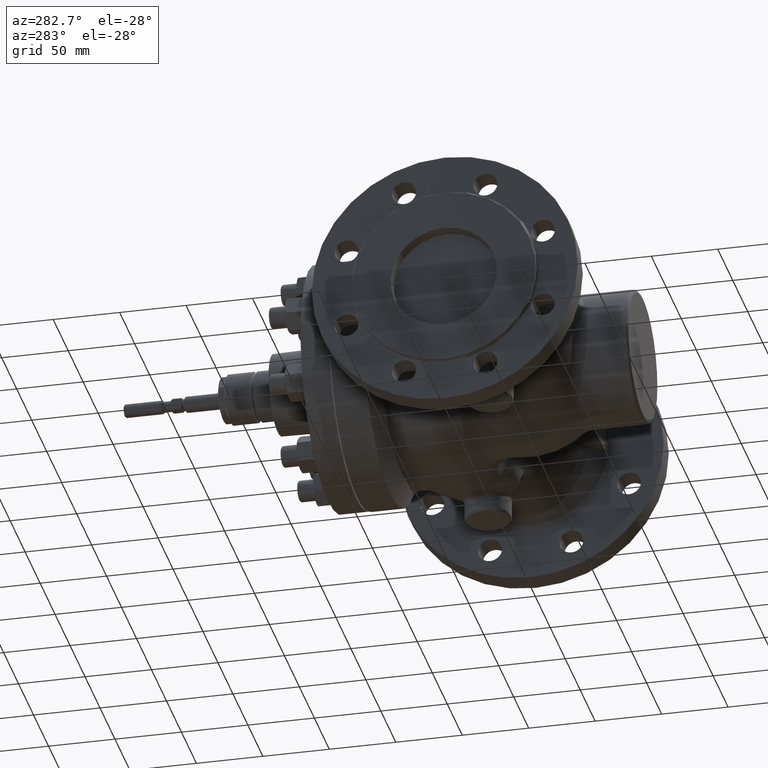
[diagram: clean part render]
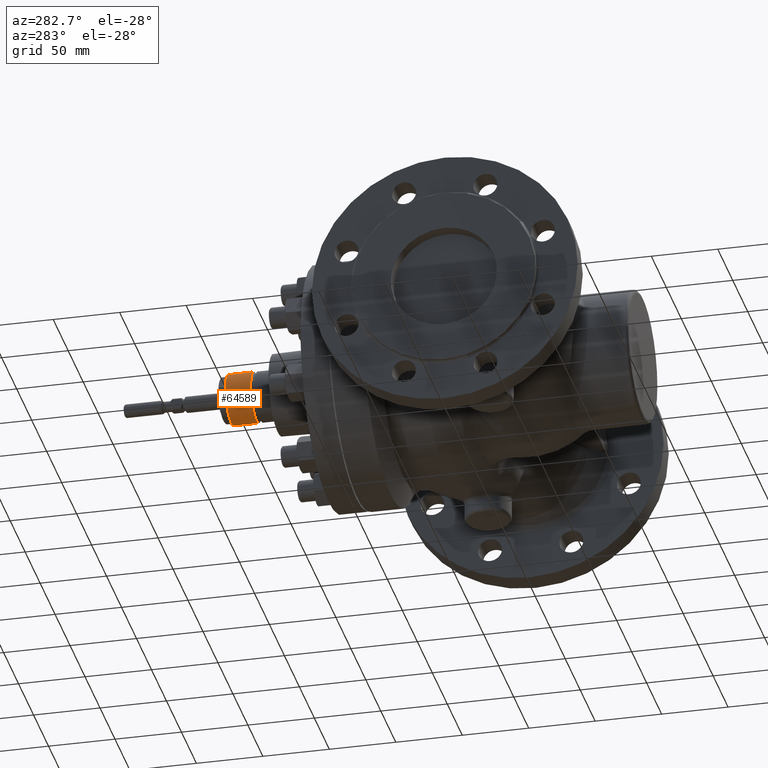
[diagram: same view with one face highlighted and labeled with its STEP entity id]
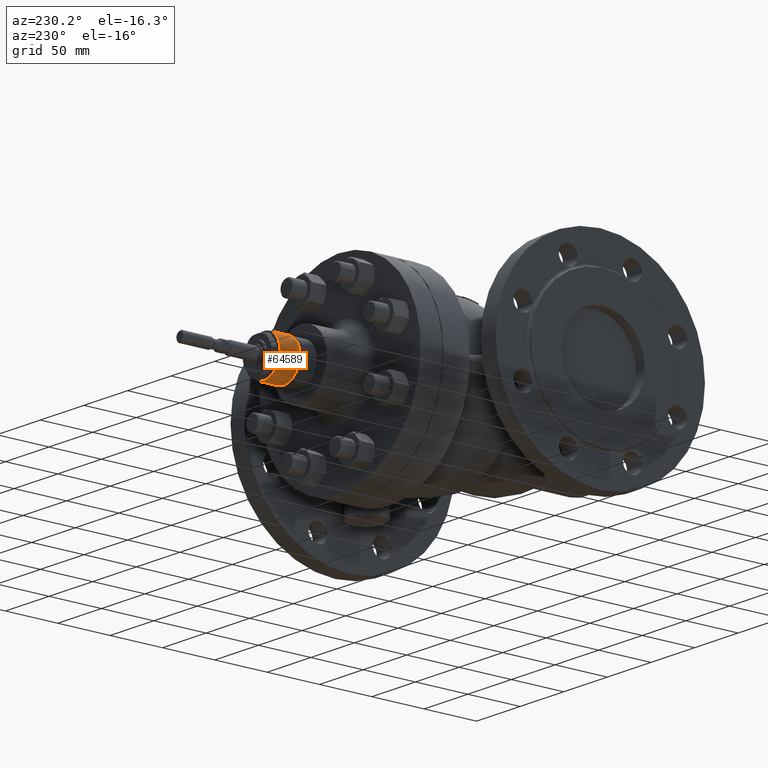
[diagram: same view with one face highlighted and labeled with its STEP entity id]
A machine part, auxiliary view. The second image highlights one B-rep face of the part: STEP entity #64589.
A second angle (auxiliary view) of the same face is appended — the face is thin or edge-on in the first view.
In plain terms, the highlighted cylindrical surface (edge-blend (fillet) strip) has radius 19 mm, axis along (-0, 1, -0).
Its self-contained STEP definition (entity closure, byte-faithful):
#3152 = FACE_OUTER_BOUND ( 'NONE', #156100, .T. ) ;
#3444 = CIRCLE ( 'NONE', #171795, 18.99999999999999600 ) ;
#10403 = CARTESIAN_POINT ( 'NONE',  ( 7.270985214937025100, 194.9999999999999700, -17.55371111771431100 ) ) ;
#15686 = DIRECTION ( 'NONE',  ( -1.224646799147352000E-016, 1.000000000000000000, -0.0000000000000000000 ) ) ;
#16421 = DIRECTION ( 'NONE',  ( -0.3826834323651069300, 0.0000000000000000000, 0.9238795325112797400 ) ) ;
#27944 = VERTEX_POINT ( 'NONE', #57456 ) ;
#28254 = CARTESIAN_POINT ( 'NONE',  ( -7.270985214937037500, 194.9999999999999700, 17.55371111771431100 ) ) ;
#40421 = CARTESIAN_POINT ( 'NONE',  ( -7.270985214937037500, 194.9999999999999700, 17.55371111771431100 ) ) ;
#48478 = LINE ( 'NONE', #10403, #94386 ) ;
#54790 = EDGE_CURVE ( 'NONE', #70991, #197759, #76784, .T. ) ;
#57456 = CARTESIAN_POINT ( 'NONE',  ( -7.270985214937034900, 176.0000000000000000, 17.55371111771431100 ) ) ;
#62800 = ORIENTED_EDGE ( 'NONE', *, *, #54790, .F. ) ;
#64589 = ADVANCED_FACE ( 'NONE', ( #3152 ), #205649, .T. ) ;
#70987 = CARTESIAN_POINT ( 'NONE',  ( -6.613092715395699600E-015, 194.9999999999999700, -1.540743955509788700E-030 ) ) ;
#70991 = VERTEX_POINT ( 'NONE', #95634 ) ;
#74695 = EDGE_CURVE ( 'NONE', #185655, #70991, #48478, .T. ) ;
#76784 = CIRCLE ( 'NONE', #155366, 18.99999999999999600 ) ;
#88333 = DIRECTION ( 'NONE',  ( -0.3826834323651069300, 0.0000000000000000000, 0.9238795325112797400 ) ) ;
#88633 = ORIENTED_EDGE ( 'NONE', *, *, #74695, .F. ) ;
#90597 = CARTESIAN_POINT ( 'NONE',  ( -4.286263797015731000E-015, 176.0000000000000000, -1.540743955509788700E-030 ) ) ;
#94386 = VECTOR ( 'NONE', #113805, 1000.000000000000000 ) ;
#95634 = CARTESIAN_POINT ( 'NONE',  ( 7.270985214937025100, 194.9999999999999700, -17.55371111771430700 ) ) ;
#100906 = AXIS2_PLACEMENT_3D ( 'NONE', #119849, #15686, #16421 ) ;
#107964 = DIRECTION ( 'NONE',  ( -0.3826834323651069300, 0.0000000000000000000, 0.9238795325112797400 ) ) ;
#113805 = DIRECTION ( 'NONE',  ( -1.224646799147352000E-016, 1.000000000000000000, -0.0000000000000000000 ) ) ;
#118314 = LINE ( 'NONE', #40421, #164179 ) ;
#119849 = CARTESIAN_POINT ( 'NONE',  ( -6.613092715395699600E-015, 194.9999999999999700, -1.540743955509788700E-030 ) ) ;
#123406 = ORIENTED_EDGE ( 'NONE', *, *, #219196, .T. ) ;
#136827 = EDGE_CURVE ( 'NONE', #27944, #197759, #118314, .T. ) ;
#151674 = ORIENTED_EDGE ( 'NONE', *, *, #136827, .T. ) ;
#155366 = AXIS2_PLACEMENT_3D ( 'NONE', #70987, #191722, #88333 ) ;
#156100 = EDGE_LOOP ( 'NONE', ( #88633, #123406, #151674, #62800 ) ) ;
#164179 = VECTOR ( 'NONE', #178530, 1000.000000000000000 ) ;
#171795 = AXIS2_PLACEMENT_3D ( 'NONE', #90597, #211353, #107964 ) ;
#178530 = DIRECTION ( 'NONE',  ( -1.224646799147352000E-016, 1.000000000000000000, -0.0000000000000000000 ) ) ;
#185655 = VERTEX_POINT ( 'NONE', #201949 ) ;
#191722 = DIRECTION ( 'NONE',  ( -1.224646799147352000E-016, 1.000000000000000000, -0.0000000000000000000 ) ) ;
#197759 = VERTEX_POINT ( 'NONE', #28254 ) ;
#201949 = CARTESIAN_POINT ( 'NONE',  ( 7.270985214937026900, 176.0000000000000000, -17.55371111771431100 ) ) ;
#205649 = CYLINDRICAL_SURFACE ( 'NONE', #100906, 18.99999999999999600 ) ;
#211353 = DIRECTION ( 'NONE',  ( -1.224646799147352000E-016, 1.000000000000000000, -0.0000000000000000000 ) ) ;
#219196 = EDGE_CURVE ( 'NONE', #185655, #27944, #3444, .T. ) ;